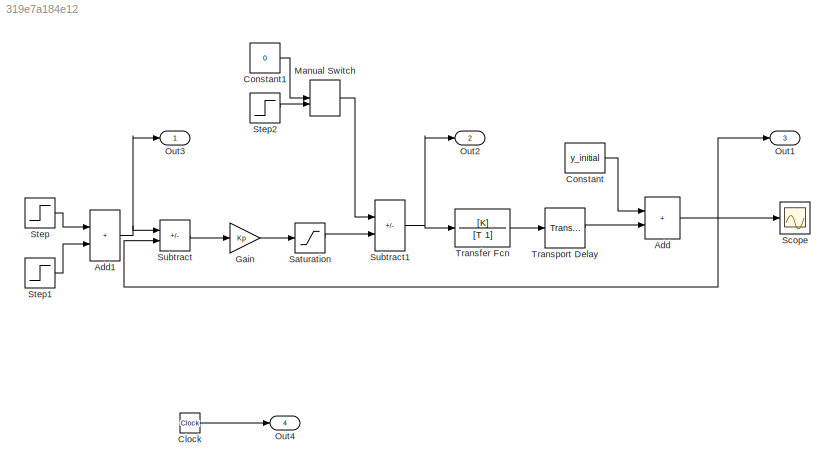
MODEL slx_319e7a184e12
KIND model
CONFIG AbsTol = auto
CONFIG EnableMultiTasking = off
CONFIG FixedStep = 1
CONFIG MaxStep = auto
CONFIG MinStep = auto
CONFIG RelTol = 1e-3
CONFIG SampleTimeConstraint = Unconstrained
CONFIG Solver = FixedStepAuto
CONFIG SolverName = FixedStepAuto
CONFIG StartTime = 0.0
CONFIG StopTime = 600
BLOCK [Sum] Add
  IconShape = rectangular
  Ports = [2, 1]
BLOCK [Sum] Add1
  IconShape = rectangular
  Ports = [2, 1]
BLOCK [Clock] Clock
BLOCK [Constant] Constant
  Value = y_initial
BLOCK [Constant] Constant1
  Value = 0
BLOCK [Gain] Gain
  Gain = Kp
BLOCK [ManualSwitch] Manual Switch
  CurrentSetting = 0
BLOCK [Outport] Out1
  Port = 3
BLOCK [Outport] Out2
  Port = 2
BLOCK [Outport] Out3
BLOCK [Outport] Out4
  Port = 4
BLOCK [Saturate] Saturation
  LowerLimit = 0
  UpperLimit = 100
BLOCK [Scope] Scope
  Floating = off
  NumInputPorts = 1
  Ports = [1]
  ScopeSpecificationString = Simulink.scopes.TimeScopeBlockCfg('CurrentConfiguration', extmgr.ConfigurationSet(extmgr.Configuration('Core','General UI',true),extmgr.Configuration('Core','Source UI',true),extmgr.Configuration('Sources','WiredSimulink',true),extmgr.Configuration('Visuals','Time Domain',true,'SerializedDisplays',{struct('MinYLimReal','8.00000','MaxYLimReal','28.00000','YLabelReal','','MinYLimMag','8.00000','MaxY...<+1325ch>
BLOCK [Step] Step
  After = 30
  SampleTime = 0
  Time = 0
BLOCK [Step] Step1
  After = 30
  SampleTime = 0
  Time = 200
BLOCK [Step] Step2
  After = 40
  SampleTime = 0
  Time = 400
BLOCK [Sum] Subtract
  IconShape = rectangular
  Inputs = +-
  Ports = [2, 1]
BLOCK [Sum] Subtract1
  IconShape = rectangular
  Inputs = -+
  Ports = [2, 1]
BLOCK [TransferFcn] Transfer Fcn
  Denominator = [T 1]
  Numerator = [K]
BLOCK [TransportDelay] Transport Delay
  DelayTime = L
  Ports = [1, 1]
NET Add1:1 -> Out3:1, Subtract:1
NET Add:1 -> Out1:1, Scope:1, Subtract:2
LINE Clock:1 -> Out4:1
LINE Constant1:1 -> Manual Switch:1
LINE Constant:1 -> Add:1
LINE Gain:1 -> Saturation:1
LINE Manual Switch:1 -> Subtract1:1
LINE Saturation:1 -> Subtract1:2
LINE Step1:1 -> Add1:2
LINE Step2:1 -> Manual Switch:2
LINE Step:1 -> Add1:1
NET Subtract1:1 -> Out2:1, Transfer Fcn:1
LINE Subtract:1 -> Gain:1
LINE Transfer Fcn:1 -> Transport Delay:1
LINE Transport Delay:1 -> Add:2
note: NET lines group one-source signal fan-out (src -> all destinations, sorted); 1:1 wires keep LINE
